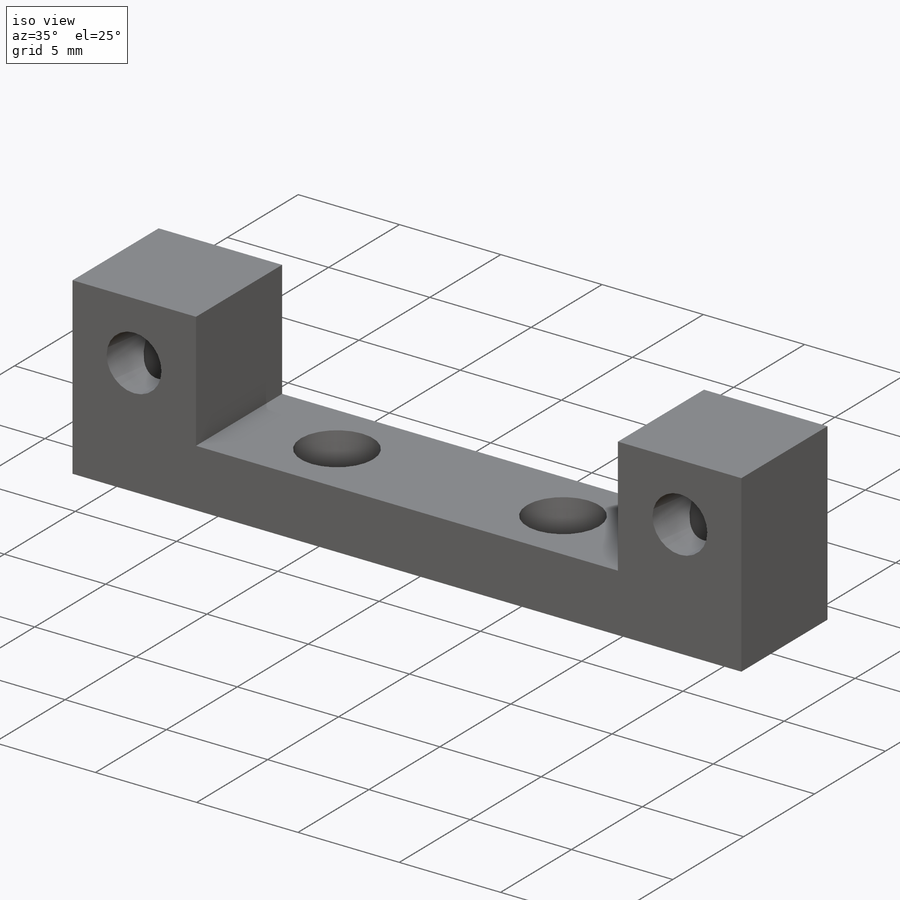
[diagram: iso view]
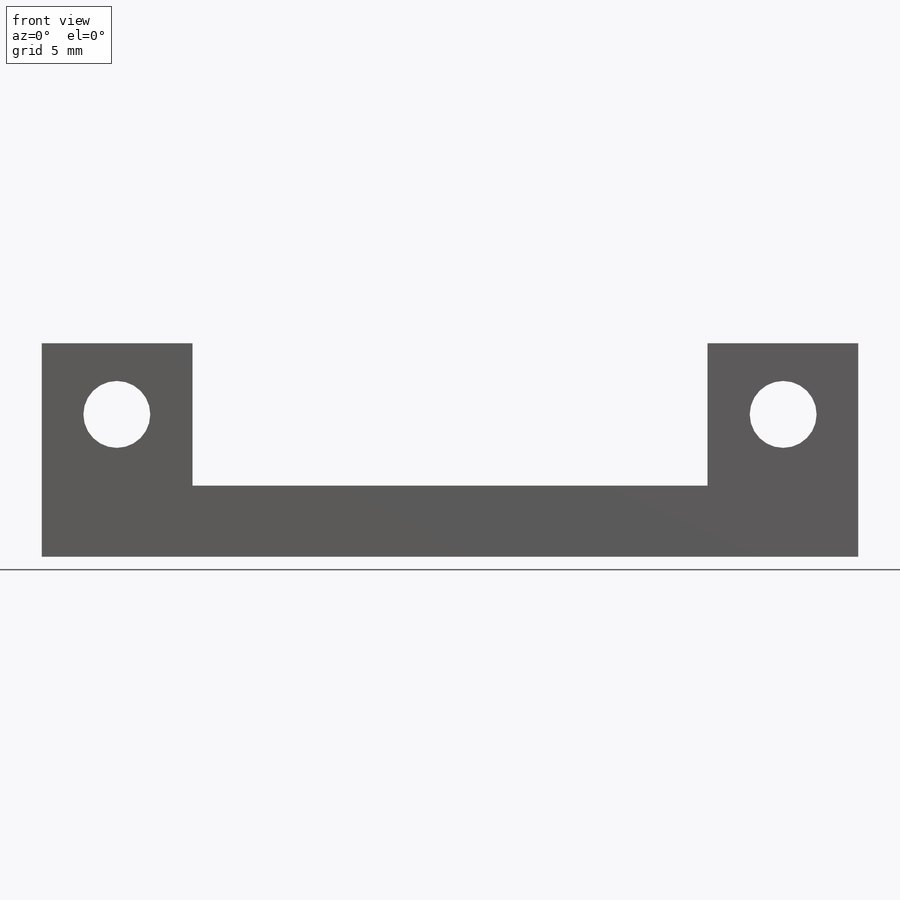
[diagram: front view]
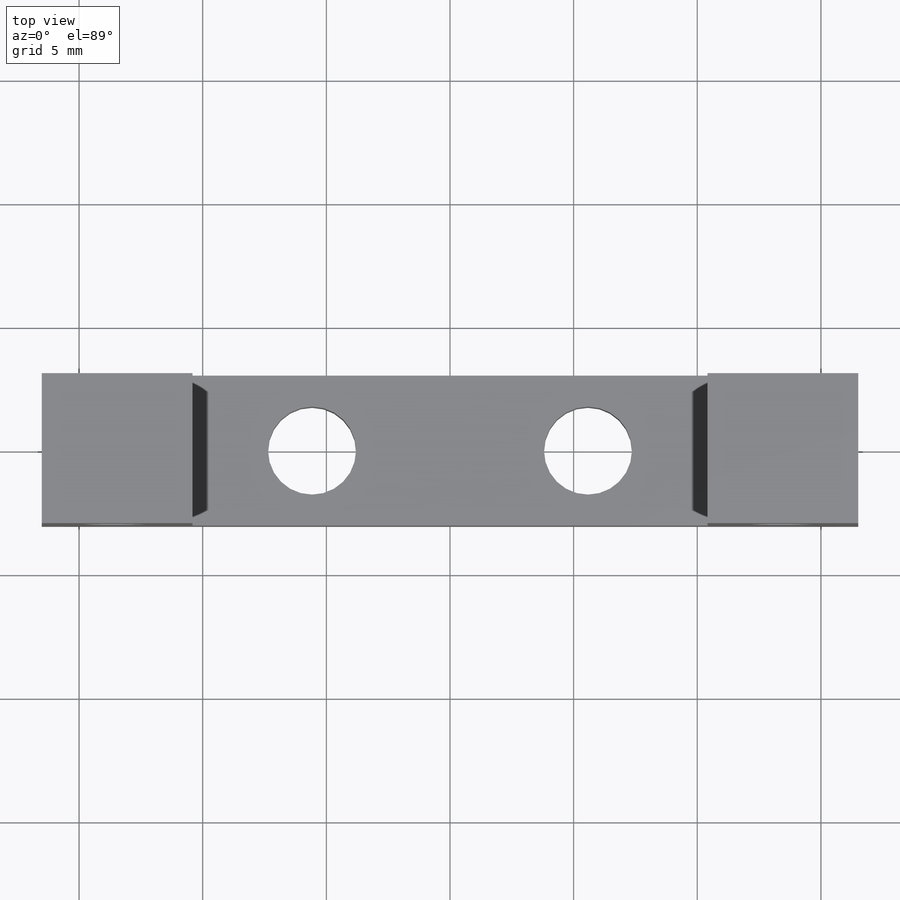
[diagram: top view]
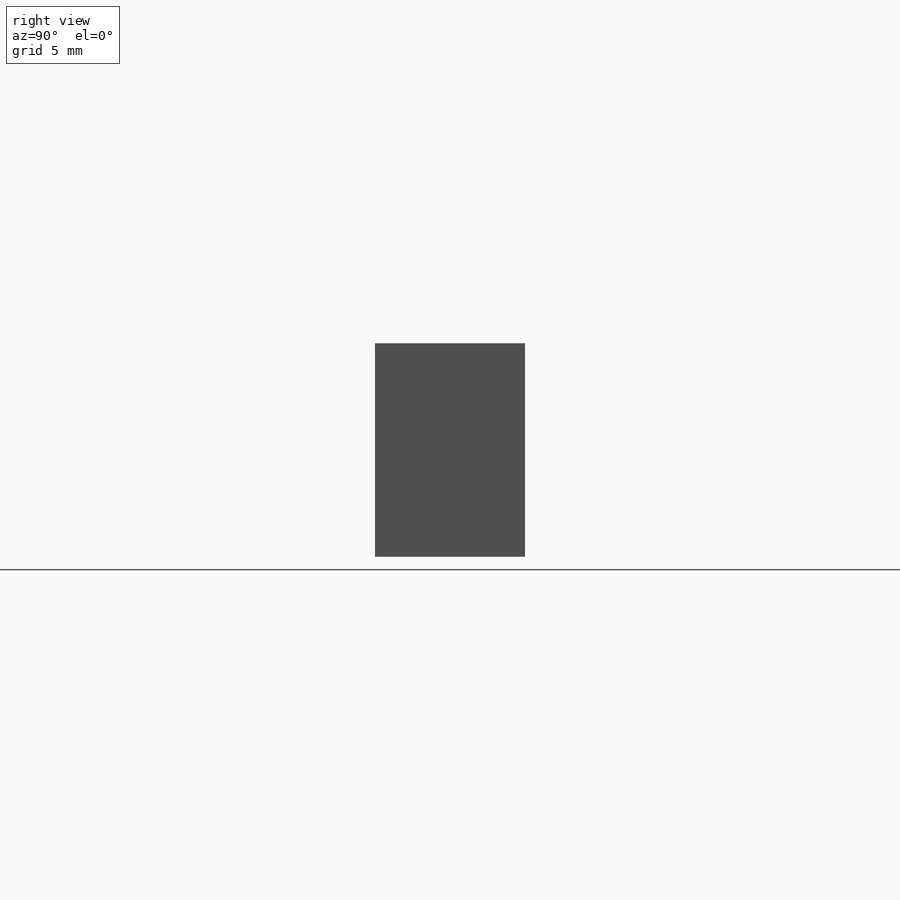
[diagram: right view]
SOLIDWORKS PART (.sldprt)
format: sldprt  version: not decoded by parser v0  size: 261,632 bytes
history: native  units: mm
features: sketch x7, thread x4, cut_extrude x2, hole x2, material x1, extrude x1 (+13 scaffold rows collapsed)
feature tree (30):
  scaffold x13  (default folders/planes/origin — collapsed)
  material  "Material <not specified>"
  sketch  "Sketch1"  dims[D1=33.02mm D2=6.0706mm]
  extrude  "Boss-Extrude1"  Depth=8.636mm
  sketch  "Sketch2"  dims[D1=20.828mm D2=~5.757333mm]
  cut_extrude  "Cut-Extrude1"  [1 undecoded]
  hole  "#6-32 Tapped Hole1"  Diameter=2.7051mm Depth=6.0706mm
  sketch  "Sketch4"  dims[D1=26.9494mm D2=13.4747mm D3=~2.878667mm]
  sketch  "Sketch3"  dims[hole-wizard template sketch: 60 standard entries collapsed; hole parameters kept: c18.Thru Tap Drill Depth=6.0706mm]
  thread  "Hole Thread1"  Diameter=3.5052mm  [1 undecoded]
  thread  "Hole Thread2"  Diameter=3.5052mm  [1 undecoded]
  hole  "#6-32 Tapped Hole2"  Diameter=2.7051mm Depth=4.404783mm
  sketch  "Sketch6"  dims[D1=26.9494mm D2=13.4747mm]
  sketch  "Sketch5"  dims[hole-wizard template sketch: 60 standard entries collapsed; hole parameters kept: c18.Thru Tap Drill Depth=~4.404783mm]
  thread  "Hole Thread3"  Diameter=3.5052mm  [1 undecoded]
  thread  "Hole Thread4"  Diameter=3.5052mm  [1 undecoded]
  sketch  "Sketch7"  dims[c1.D1=12.7mm c1.D2=4.064mm c1.D4=3.556mm c1.D6=3.556mm c1.D3=9.525mm c1.D5=9.525mm c1.D7=19.05mm c1.D8=~13.470384mm c1.D9=~5.579616mm c2.D1=~11.159232mm c2.D2=~5.579616mm]
  cut_extrude  "Cut-Extrude2"  [1 undecoded]
decode coverage: 14 of 16 modeling features carry decoded parameters
note: ~ marks probable driven/reference dimensions
note: 6 parameter values undecoded
note: suppression state not decoded; provenance and decode notes live in map.json
